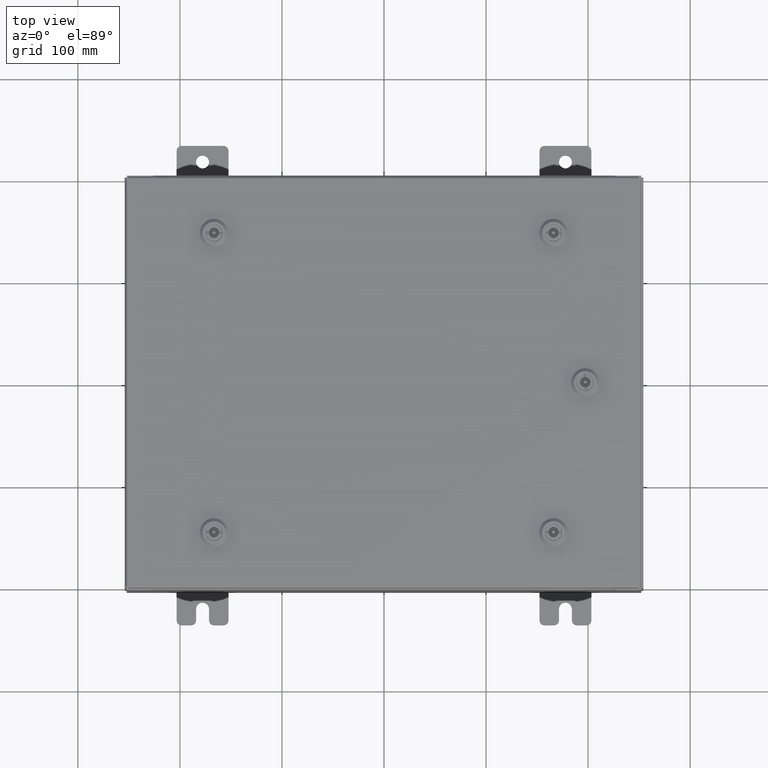
[diagram: clean part render]
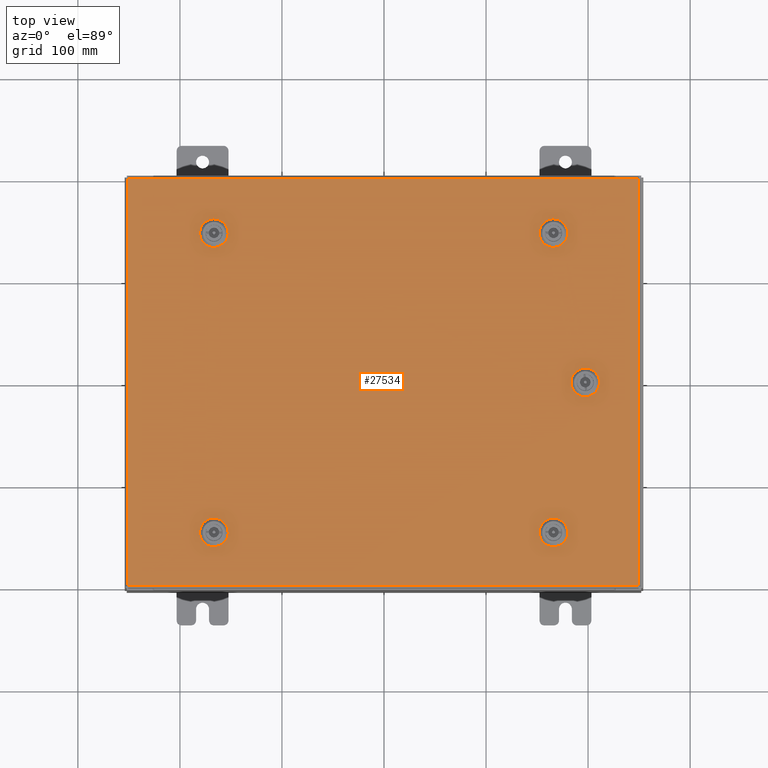
[diagram: same view with one face highlighted and labeled with its STEP entity id]
A machine part, top view. The second image highlights one B-rep face of the part: STEP entity #27534.
In plain terms, the highlighted planar face has unit normal (0, 0, -1).
Its self-contained STEP definition (entity closure, byte-faithful):
#348 = CARTESIAN_POINT ( 'NONE',  ( -6.363047624732097100, 5.392799999999997600, 0.0000000000000000000 ) ) ;
#856 = ORIENTED_EDGE ( 'NONE', *, *, #4443, .F. ) ;
#1285 = CARTESIAN_POINT ( 'NONE',  ( -9.849799999999996600, 7.849800000000001000, -2.048885995248197400E-016 ) ) ;
#1332 = CARTESIAN_POINT ( 'NONE',  ( -6.562499999999982200, 5.787799999999993600, 0.0000000000000000000 ) ) ;
#1644 = EDGE_CURVE ( 'NONE', #57119, #56373, #54412, .T. ) ;
#1732 = CARTESIAN_POINT ( 'NONE',  ( 6.363047624732090800, -6.182799999999985200, -2.741128742953046100E-014 ) ) ;
#2143 = VERTEX_POINT ( 'NONE', #59472 ) ;
#2266 = CARTESIAN_POINT ( 'NONE',  ( 6.562499999999982200, -5.787799999999993600, -2.326024867937287700E-014 ) ) ;
#2727 = LINE ( 'NONE', #4437, #55936 ) ;
#2816 = EDGE_CURVE ( 'NONE', #6146, #8316, #22693, .T. ) ;
#3255 = VERTEX_POINT ( 'NONE', #52387 ) ;
#3275 = CARTESIAN_POINT ( 'NONE',  ( -6.562499999999982200, -5.787799999999995400, -4.963978678686834100E-014 ) ) ;
#3628 = EDGE_CURVE ( 'NONE', #47539, #48164, #21097, .T. ) ;
#3692 = CARTESIAN_POINT ( 'NONE',  ( -6.363047624732097100, -5.392799999999999400, -4.688151652918229300E-014 ) ) ;
#3789 = LINE ( 'NONE', #8901, #29908 ) ;
#3847 = DIRECTION ( 'NONE',  ( 0.0000000000000000000, 0.0000000000000000000, 1.000000000000000000 ) ) ;
#3917 = CARTESIAN_POINT ( 'NONE',  ( 7.392800000000016200, 0.1994523752679053800, 0.0000000000000000000 ) ) ;
#4165 = VECTOR ( 'NONE', #53612, 39.37007874015748100 ) ;
#4298 = CARTESIAN_POINT ( 'NONE',  ( 7.392800000000016200, 0.1994523752679053200, 0.0000000000000000000 ) ) ;
#4334 = VERTEX_POINT ( 'NONE', #58312 ) ;
#4437 = CARTESIAN_POINT ( 'NONE',  ( 8.182800000000003800, 0.1994523752679009100, 0.0000000000000000000 ) ) ;
#4443 = EDGE_CURVE ( 'NONE', #40968, #11866, #15666, .T. ) ;
#4897 = DIRECTION ( 'NONE',  ( -0.0000000000000000000, -6.982962677686266700E-015, 1.000000000000000000 ) ) ;
#4906 = EDGE_CURVE ( 'NONE', #42627, #11443, #36209, .T. ) ;
#5082 = VERTEX_POINT ( 'NONE', #21747 ) ;
#5396 = CARTESIAN_POINT ( 'NONE',  ( -6.363047624732090800, 6.182799999999985200, 0.0000000000000000000 ) ) ;
#5626 = AXIS2_PLACEMENT_3D ( 'NONE', #53522, #24709, #58388 ) ;
#5725 = AXIS2_PLACEMENT_3D ( 'NONE', #34254, #4897, #39074 ) ;
#6146 = VERTEX_POINT ( 'NONE', #23786 ) ;
#6350 = DIRECTION ( 'NONE',  ( 1.000000000000000000, 0.0000000000000000000, 0.0000000000000000000 ) ) ;
#6488 = ORIENTED_EDGE ( 'NONE', *, *, #50657, .F. ) ;
#6748 = EDGE_CURVE ( 'NONE', #58256, #47539, #11669, .T. ) ;
#7010 = ORIENTED_EDGE ( 'NONE', *, *, #16167, .F. ) ;
#7127 = LINE ( 'NONE', #59695, #42965 ) ;
#7249 = DIRECTION ( 'NONE',  ( 1.000000000000000000, 0.0000000000000000000, 6.982962677686261200E-015 ) ) ;
#7351 = DIRECTION ( 'NONE',  ( -1.000000000000000000, 2.739348669069610000E-015, 1.946424297521510000E-029 ) ) ;
#7633 = DIRECTION ( 'NONE',  ( 6.982962677686266700E-015, -0.0000000000000000000, 1.000000000000000000 ) ) ;
#7824 = CARTESIAN_POINT ( 'NONE',  ( 6.562499999999982200, 5.787799999999995400, -2.637953810749545800E-014 ) ) ;
#8012 = DIRECTION ( 'NONE',  ( -6.982962677686266700E-015, -6.982962677686266700E-015, 1.000000000000000000 ) ) ;
#8267 = FACE_BOUND ( 'NONE', #49751, .T. ) ;
#8270 = DIRECTION ( 'NONE',  ( 0.0000000000000000000, 1.000000000000000000, 6.982962677686269100E-015 ) ) ;
#8316 = VERTEX_POINT ( 'NONE', #47355 ) ;
#8773 = EDGE_LOOP ( 'NONE', ( #31400, #23555, #35039, #20751 ) ) ;
#8901 = CARTESIAN_POINT ( 'NONE',  ( 6.363047624732090800, -6.182799999999985200, -2.741128742953046100E-014 ) ) ;
#9084 = EDGE_CURVE ( 'NONE', #21760, #57119, #7127, .T. ) ;
#9629 = ORIENTED_EDGE ( 'NONE', *, *, #22075, .F. ) ;
#9861 = VERTEX_POINT ( 'NONE', #42300 ) ;
#10195 = CARTESIAN_POINT ( 'NONE',  ( 9.849800000000001900, -7.849799999999999200, -2.048885995248197400E-016 ) ) ;
#10448 = ORIENTED_EDGE ( 'NONE', *, *, #61445, .F. ) ;
#11164 = VECTOR ( 'NONE', #52147, 39.37007874015748100 ) ;
#11321 = DIRECTION ( 'NONE',  ( -1.000000000000000000, 0.0000000000000000000, 6.982962677686261200E-015 ) ) ;
#11443 = VERTEX_POINT ( 'NONE', #35872 ) ;
#11520 = ORIENTED_EDGE ( 'NONE', *, *, #57882, .F. ) ;
#11532 = CIRCLE ( 'NONE', #13554, 0.4424999999999972800 ) ;
#11669 = LINE ( 'NONE', #3917, #37606 ) ;
#11758 = DIRECTION ( 'NONE',  ( 0.0000000000000000000, 0.0000000000000000000, 1.000000000000000000 ) ) ;
#11866 = VERTEX_POINT ( 'NONE', #12101 ) ;
#11993 = ORIENTED_EDGE ( 'NONE', *, *, #4906, .F. ) ;
#12101 = CARTESIAN_POINT ( 'NONE',  ( -6.119999999999985000, -5.787799999999995400, -4.963978678686834100E-014 ) ) ;
#12209 = ORIENTED_EDGE ( 'NONE', *, *, #3628, .F. ) ;
#12291 = CARTESIAN_POINT ( 'NONE',  ( 6.562499999999982200, 5.787799999999995400, -2.637953810749545800E-014 ) ) ;
#12499 = ORIENTED_EDGE ( 'NONE', *, *, #23521, .F. ) ;
#12501 = AXIS2_PLACEMENT_3D ( 'NONE', #28643, #62228, #33492 ) ;
#12639 = VERTEX_POINT ( 'NONE', #45659 ) ;
#12779 = CARTESIAN_POINT ( 'NONE',  ( -6.562499999999982200, 5.787799999999993600, 0.0000000000000000000 ) ) ;
#13187 = CARTESIAN_POINT ( 'NONE',  ( -6.363047624732090800, -6.182799999999987000, -5.239805704455435800E-014 ) ) ;
#13206 = AXIS2_PLACEMENT_3D ( 'NONE', #12779, #11758, #15734 ) ;
#13447 = CARTESIAN_POINT ( 'NONE',  ( 6.363047624732097100, -5.392799999999997600, -2.189474691415834200E-014 ) ) ;
#13554 = AXIS2_PLACEMENT_3D ( 'NONE', #3275, #37518, #8270 ) ;
#14785 = EDGE_LOOP ( 'NONE', ( #45666, #10448, #6488, #12499, #856 ) ) ;
#14964 = VECTOR ( 'NONE', #31048, 39.37007874015748100 ) ;
#14990 = CIRCLE ( 'NONE', #12501, 0.4424999999999983400 ) ;
#15186 = VERTEX_POINT ( 'NONE', #1732 ) ;
#15666 = CIRCLE ( 'NONE', #51242, 0.4424999999999972800 ) ;
#15734 = DIRECTION ( 'NONE',  ( 1.000000000000000000, 0.0000000000000000000, 0.0000000000000000000 ) ) ;
#16167 = EDGE_CURVE ( 'NONE', #3255, #5082, #50022, .T. ) ;
#16198 = AXIS2_PLACEMENT_3D ( 'NONE', #60338, #20979, #31645 ) ;
#16288 = CARTESIAN_POINT ( 'NONE',  ( -9.849799999999996600, -7.849799999999999200, -2.219626494852214000E-016 ) ) ;
#16548 = LINE ( 'NONE', #16288, #14964 ) ;
#17241 = DIRECTION ( 'NONE',  ( -1.000000000000000000, 0.0000000000000000000, 6.982962677686269100E-015 ) ) ;
#18228 = LINE ( 'NONE', #348, #61225 ) ;
#18530 = VERTEX_POINT ( 'NONE', #27648 ) ;
#18885 = EDGE_CURVE ( 'NONE', #9861, #33569, #30352, .T. ) ;
#18964 = DIRECTION ( 'NONE',  ( -1.000000000000000000, 1.369674334534793800E-014, 0.0000000000000000000 ) ) ;
#19049 = CARTESIAN_POINT ( 'NONE',  ( -9.849799999999996600, 7.849800000000001000, -2.048885995248197400E-016 ) ) ;
#19310 = EDGE_CURVE ( 'NONE', #11443, #12639, #14990, .T. ) ;
#19759 = CIRCLE ( 'NONE', #5626, 0.4424999999999972800 ) ;
#19801 = EDGE_LOOP ( 'NONE', ( #24010, #51541, #9629, #32609, #35127 ) ) ;
#19807 = DIRECTION ( 'NONE',  ( 1.000000000000000000, 2.739348669069610000E-015, -0.0000000000000000000 ) ) ;
#20599 = VERTEX_POINT ( 'NONE', #3692 ) ;
#20669 = EDGE_CURVE ( 'NONE', #2143, #36961, #55599, .T. ) ;
#20751 = ORIENTED_EDGE ( 'NONE', *, *, #1644, .T. ) ;
#20979 = DIRECTION ( 'NONE',  ( 0.0000000000000000000, 0.0000000000000000000, -1.000000000000000000 ) ) ;
#21097 = CIRCLE ( 'NONE', #52940, 0.4424999999999983400 ) ;
#21345 = FACE_BOUND ( 'NONE', #34354, .T. ) ;
#21747 = CARTESIAN_POINT ( 'NONE',  ( 6.761952375267867400, -5.392799999999995800, 0.0000000000000000000 ) ) ;
#21760 = VERTEX_POINT ( 'NONE', #36198 ) ;
#21993 = DIRECTION ( 'NONE',  ( 0.0000000000000000000, -1.000000000000000000, 0.0000000000000000000 ) ) ;
#22075 = EDGE_CURVE ( 'NONE', #33569, #6146, #57800, .T. ) ;
#22508 = VECTOR ( 'NONE', #36787, 39.37007874015748100 ) ;
#22693 = CIRCLE ( 'NONE', #13206, 0.4424999999999983400 ) ;
#23521 = EDGE_CURVE ( 'NONE', #11866, #20599, #11532, .T. ) ;
#23555 = ORIENTED_EDGE ( 'NONE', *, *, #59956, .T. ) ;
#23654 = EDGE_CURVE ( 'NONE', #15186, #51661, #3789, .T. ) ;
#23674 = VECTOR ( 'NONE', #37106, 39.37007874015748100 ) ;
#23786 = CARTESIAN_POINT ( 'NONE',  ( -6.761952375267863900, 6.182799999999990500, 0.0000000000000000000 ) ) ;
#24010 = ORIENTED_EDGE ( 'NONE', *, *, #57205, .F. ) ;
#24024 = LINE ( 'NONE', #41404, #22508 ) ;
#24205 = LINE ( 'NONE', #13447, #11164 ) ;
#24206 = DIRECTION ( 'NONE',  ( -8.218046007208852600E-015, 1.000000000000000000, -0.0000000000000000000 ) ) ;
#24552 = VERTEX_POINT ( 'NONE', #54461 ) ;
#24637 = CARTESIAN_POINT ( 'NONE',  ( 7.787800000000009600, 1.529834876451990400E-014, 0.0000000000000000000 ) ) ;
#24709 = DIRECTION ( 'NONE',  ( -6.982962677686266700E-015, -6.982962677686266700E-015, 1.000000000000000000 ) ) ;
#24820 = CARTESIAN_POINT ( 'NONE',  ( 9.849800000000001900, -7.849799999999999200, -2.048885995248197400E-016 ) ) ;
#25556 = EDGE_CURVE ( 'NONE', #18530, #40968, #26763, .T. ) ;
#25826 = EDGE_LOOP ( 'NONE', ( #11520, #12209, #54034, #33963 ) ) ;
#25871 = CIRCLE ( 'NONE', #43624, 0.4424999999999972800 ) ;
#26763 = LINE ( 'NONE', #41944, #23674 ) ;
#27315 = CIRCLE ( 'NONE', #47876, 0.4424999999999983400 ) ;
#27454 = ORIENTED_EDGE ( 'NONE', *, *, #20669, .F. ) ;
#27534 = ADVANCED_FACE ( 'NONE', ( #35797, #21345, #58299, #8267, #45552, #32790 ), #55524, .F. ) ;
#27648 = CARTESIAN_POINT ( 'NONE',  ( -6.761952375267863900, -6.182799999999993200, 0.0000000000000000000 ) ) ;
#28643 = CARTESIAN_POINT ( 'NONE',  ( 6.562499999999982200, 5.787799999999995400, -2.637953810749545800E-014 ) ) ;
#29533 = VERTEX_POINT ( 'NONE', #24820 ) ;
#29560 = DIRECTION ( 'NONE',  ( 1.000000000000000000, 0.0000000000000000000, 0.0000000000000000000 ) ) ;
#29693 = LINE ( 'NONE', #39310, #53692 ) ;
#29908 = VECTOR ( 'NONE', #42970, 39.37007874015748100 ) ;
#30084 = EDGE_CURVE ( 'NONE', #51661, #3255, #27315, .T. ) ;
#30274 = LINE ( 'NONE', #10195, #4165 ) ;
#30352 = CIRCLE ( 'NONE', #53856, 0.4424999999999972800 ) ;
#31048 = DIRECTION ( 'NONE',  ( 1.000000000000000000, -0.0000000000000000000, -0.0000000000000000000 ) ) ;
#31400 = ORIENTED_EDGE ( 'NONE', *, *, #35006, .T. ) ;
#31459 = AXIS2_PLACEMENT_3D ( 'NONE', #12291, #46239, #17241 ) ;
#31645 = DIRECTION ( 'NONE',  ( -1.000000000000000000, 0.0000000000000000000, -0.0000000000000000000 ) ) ;
#32609 = ORIENTED_EDGE ( 'NONE', *, *, #18885, .F. ) ;
#32790 = FACE_OUTER_BOUND ( 'NONE', #8773, .T. ) ;
#32954 = DIRECTION ( 'NONE',  ( 1.000000000000000000, 0.0000000000000000000, 0.0000000000000000000 ) ) ;
#33200 = CARTESIAN_POINT ( 'NONE',  ( -6.562499999999982200, 5.787799999999993600, 0.0000000000000000000 ) ) ;
#33492 = DIRECTION ( 'NONE',  ( -1.000000000000000000, 0.0000000000000000000, 6.982962677686261200E-015 ) ) ;
#33569 = VERTEX_POINT ( 'NONE', #5396 ) ;
#33800 = VECTOR ( 'NONE', #7351, 39.37007874015748100 ) ;
#33963 = ORIENTED_EDGE ( 'NONE', *, *, #57960, .F. ) ;
#34196 = ORIENTED_EDGE ( 'NONE', *, *, #48656, .F. ) ;
#34254 = CARTESIAN_POINT ( 'NONE',  ( -6.562499999999982200, -5.787799999999995400, -4.963978678686834100E-014 ) ) ;
#34354 = EDGE_LOOP ( 'NONE', ( #34529, #7010, #60462, #41149, #48407 ) ) ;
#34529 = ORIENTED_EDGE ( 'NONE', *, *, #34619, .F. ) ;
#34619 = EDGE_CURVE ( 'NONE', #5082, #53585, #24205, .T. ) ;
#35006 = EDGE_CURVE ( 'NONE', #56373, #29533, #16548, .T. ) ;
#35039 = ORIENTED_EDGE ( 'NONE', *, *, #9084, .T. ) ;
#35127 = ORIENTED_EDGE ( 'NONE', *, *, #61249, .F. ) ;
#35238 = DIRECTION ( 'NONE',  ( 0.0000000000000000000, 0.0000000000000000000, 1.000000000000000000 ) ) ;
#35624 = DIRECTION ( 'NONE',  ( 0.0000000000000000000, 0.0000000000000000000, 1.000000000000000000 ) ) ;
#35797 = FACE_BOUND ( 'NONE', #25826, .T. ) ;
#35872 = CARTESIAN_POINT ( 'NONE',  ( 7.004999999999980400, 5.787799999999995400, -2.946949909237162500E-014 ) ) ;
#36198 = CARTESIAN_POINT ( 'NONE',  ( 9.849800000000001900, 7.849800000000001000, -7.683322482180740400E-016 ) ) ;
#36209 = CIRCLE ( 'NONE', #39262, 0.4424999999999983400 ) ;
#36426 = ORIENTED_EDGE ( 'NONE', *, *, #46006, .F. ) ;
#36545 = DIRECTION ( 'NONE',  ( -6.982962677686266700E-015, -6.982962677686266700E-015, 1.000000000000000000 ) ) ;
#36787 = DIRECTION ( 'NONE',  ( 1.000000000000000000, -2.739348669069610000E-015, -6.982962677686248600E-015 ) ) ;
#36961 = VERTEX_POINT ( 'NONE', #60792 ) ;
#37106 = DIRECTION ( 'NONE',  ( 1.000000000000000000, 1.369674334534793800E-014, 9.732121487607470400E-029 ) ) ;
#37268 = CARTESIAN_POINT ( 'NONE',  ( 6.562499999999982200, -5.787799999999993600, -2.326024867937287700E-014 ) ) ;
#37518 = DIRECTION ( 'NONE',  ( -0.0000000000000000000, -6.982962677686266700E-015, 1.000000000000000000 ) ) ;
#37606 = VECTOR ( 'NONE', #50440, 39.37007874015748100 ) ;
#37882 = CARTESIAN_POINT ( 'NONE',  ( 6.363047624732097100, -5.392799999999997600, -2.189474691415834200E-014 ) ) ;
#38054 = DIRECTION ( 'NONE',  ( 1.000000000000000000, 0.0000000000000000000, 0.0000000000000000000 ) ) ;
#39074 = DIRECTION ( 'NONE',  ( 0.0000000000000000000, 1.000000000000000000, 6.982962677686270700E-015 ) ) ;
#39262 = AXIS2_PLACEMENT_3D ( 'NONE', #7824, #7633, #11321 ) ;
#39310 = CARTESIAN_POINT ( 'NONE',  ( 6.363047624732090800, 6.182799999999987000, -2.498676961502389700E-014 ) ) ;
#39748 = AXIS2_PLACEMENT_3D ( 'NONE', #2266, #36545, #7249 ) ;
#40638 = CARTESIAN_POINT ( 'NONE',  ( 7.392800000000012700, -0.1994523752678671000, 0.0000000000000000000 ) ) ;
#40968 = VERTEX_POINT ( 'NONE', #13187 ) ;
#41149 = ORIENTED_EDGE ( 'NONE', *, *, #23654, .F. ) ;
#41404 = CARTESIAN_POINT ( 'NONE',  ( 6.363047624732097100, 5.392799999999999400, -2.498676961502394800E-014 ) ) ;
#41689 = VECTOR ( 'NONE', #21993, 39.37007874015748100 ) ;
#41944 = CARTESIAN_POINT ( 'NONE',  ( -6.363047624732090800, -6.182799999999987000, -5.239805704455435800E-014 ) ) ;
#42102 = DIRECTION ( 'NONE',  ( 1.000000000000000000, 0.0000000000000000000, 6.982962677686261200E-015 ) ) ;
#42201 = CARTESIAN_POINT ( 'NONE',  ( 6.761952375267863900, -6.182799999999990500, -2.462575044458744400E-014 ) ) ;
#42300 = CARTESIAN_POINT ( 'NONE',  ( -6.119999999999985000, 5.787799999999993600, 0.0000000000000000000 ) ) ;
#42627 = VERTEX_POINT ( 'NONE', #53443 ) ;
#42965 = VECTOR ( 'NONE', #57856, 39.37007874015748100 ) ;
#42970 = DIRECTION ( 'NONE',  ( 1.000000000000000000, -1.369674334534793800E-014, 6.982962677686171300E-015 ) ) ;
#43624 = AXIS2_PLACEMENT_3D ( 'NONE', #24637, #58314, #29560 ) ;
#43870 = CARTESIAN_POINT ( 'NONE',  ( -9.849799999999996600, -7.849799999999999200, -2.219626494852214000E-016 ) ) ;
#44267 = CARTESIAN_POINT ( 'NONE',  ( -6.562499999999982200, -5.787799999999995400, -4.963978678686834100E-014 ) ) ;
#44511 = CIRCLE ( 'NONE', #46087, 0.4424999999999972800 ) ;
#44682 = DIRECTION ( 'NONE',  ( -0.0000000000000000000, -6.982962677686266700E-015, 1.000000000000000000 ) ) ;
#45043 = VECTOR ( 'NONE', #18964, 39.37007874015748100 ) ;
#45080 = DIRECTION ( 'NONE',  ( 0.0000000000000000000, 1.000000000000000000, 6.982962677686269100E-015 ) ) ;
#45552 = FACE_BOUND ( 'NONE', #19801, .T. ) ;
#45659 = CARTESIAN_POINT ( 'NONE',  ( 6.761952375267863900, 6.182799999999993200, 0.0000000000000000000 ) ) ;
#45666 = ORIENTED_EDGE ( 'NONE', *, *, #25556, .F. ) ;
#46006 = EDGE_CURVE ( 'NONE', #12639, #2143, #29693, .T. ) ;
#46087 = AXIS2_PLACEMENT_3D ( 'NONE', #33200, #3847, #38054 ) ;
#46239 = DIRECTION ( 'NONE',  ( 6.982962677686266700E-015, -0.0000000000000000000, 1.000000000000000000 ) ) ;
#46526 = LINE ( 'NONE', #55666, #33800 ) ;
#46947 = CARTESIAN_POINT ( 'NONE',  ( -6.363047624732097100, 5.392799999999997600, 0.0000000000000000000 ) ) ;
#47355 = CARTESIAN_POINT ( 'NONE',  ( -6.761952375267867400, 5.392799999999995800, 0.0000000000000000000 ) ) ;
#47539 = VERTEX_POINT ( 'NONE', #40638 ) ;
#47876 = AXIS2_PLACEMENT_3D ( 'NONE', #37268, #8012, #42102 ) ;
#48164 = VERTEX_POINT ( 'NONE', #48528 ) ;
#48407 = ORIENTED_EDGE ( 'NONE', *, *, #57166, .F. ) ;
#48528 = CARTESIAN_POINT ( 'NONE',  ( 8.182800000000009200, -0.1994523752678676000, 0.0000000000000000000 ) ) ;
#48656 = EDGE_CURVE ( 'NONE', #36961, #42627, #24024, .T. ) ;
#49751 = EDGE_LOOP ( 'NONE', ( #36426, #61881, #11993, #34196, #27454 ) ) ;
#50022 = CIRCLE ( 'NONE', #39748, 0.4424999999999983400 ) ;
#50440 = DIRECTION ( 'NONE',  ( -8.218046007208770500E-015, -1.000000000000000000, 0.0000000000000000000 ) ) ;
#50657 = EDGE_CURVE ( 'NONE', #20599, #4334, #46526, .T. ) ;
#51242 = AXIS2_PLACEMENT_3D ( 'NONE', #44267, #44682, #45080 ) ;
#51541 = ORIENTED_EDGE ( 'NONE', *, *, #2816, .F. ) ;
#51661 = VERTEX_POINT ( 'NONE', #42201 ) ;
#52147 = DIRECTION ( 'NONE',  ( -1.000000000000000000, -2.739348669069610000E-015, -6.982962677686276200E-015 ) ) ;
#52387 = CARTESIAN_POINT ( 'NONE',  ( 7.004999999999980400, -5.787799999999993600, -2.017028769449671600E-014 ) ) ;
#52704 = CIRCLE ( 'NONE', #5725, 0.4424999999999983400 ) ;
#52940 = AXIS2_PLACEMENT_3D ( 'NONE', #55326, #35238, #32954 ) ;
#53443 = CARTESIAN_POINT ( 'NONE',  ( 6.761952375267867400, 5.392799999999998500, -2.777230659996697100E-014 ) ) ;
#53522 = CARTESIAN_POINT ( 'NONE',  ( 6.562499999999982200, -5.787799999999993600, -2.326024867937287700E-014 ) ) ;
#53585 = VERTEX_POINT ( 'NONE', #37882 ) ;
#53612 = DIRECTION ( 'NONE',  ( 0.0000000000000000000, 1.000000000000000000, 0.0000000000000000000 ) ) ;
#53692 = VECTOR ( 'NONE', #58591, 39.37007874015748100 ) ;
#53856 = AXIS2_PLACEMENT_3D ( 'NONE', #1332, #35624, #6350 ) ;
#54034 = ORIENTED_EDGE ( 'NONE', *, *, #6748, .F. ) ;
#54412 = LINE ( 'NONE', #1285, #41689 ) ;
#54461 = CARTESIAN_POINT ( 'NONE',  ( 8.182800000000003800, 0.1994523752679009100, 0.0000000000000000000 ) ) ;
#55326 = CARTESIAN_POINT ( 'NONE',  ( 7.787800000000009600, 1.529834876451990400E-014, 0.0000000000000000000 ) ) ;
#55524 = PLANE ( 'NONE',  #16198 ) ;
#55599 = CIRCLE ( 'NONE', #31459, 0.4424999999999972800 ) ;
#55666 = CARTESIAN_POINT ( 'NONE',  ( -6.363047624732097100, -5.392799999999999400, -4.688151652918229300E-014 ) ) ;
#55936 = VECTOR ( 'NONE', #24206, 39.37007874015748100 ) ;
#56373 = VERTEX_POINT ( 'NONE', #43870 ) ;
#57119 = VERTEX_POINT ( 'NONE', #19049 ) ;
#57166 = EDGE_CURVE ( 'NONE', #53585, #15186, #19759, .T. ) ;
#57205 = EDGE_CURVE ( 'NONE', #8316, #59592, #18228, .T. ) ;
#57800 = LINE ( 'NONE', #62168, #45043 ) ;
#57856 = DIRECTION ( 'NONE',  ( -1.000000000000000000, -0.0000000000000000000, -0.0000000000000000000 ) ) ;
#57882 = EDGE_CURVE ( 'NONE', #48164, #24552, #2727, .T. ) ;
#57960 = EDGE_CURVE ( 'NONE', #24552, #58256, #25871, .T. ) ;
#58256 = VERTEX_POINT ( 'NONE', #4298 ) ;
#58299 = FACE_BOUND ( 'NONE', #14785, .T. ) ;
#58312 = CARTESIAN_POINT ( 'NONE',  ( -6.761952375267867400, -5.392799999999998500, -4.688151652918228700E-014 ) ) ;
#58314 = DIRECTION ( 'NONE',  ( 0.0000000000000000000, 0.0000000000000000000, 1.000000000000000000 ) ) ;
#58388 = DIRECTION ( 'NONE',  ( 1.000000000000000000, 0.0000000000000000000, 6.982962677686269100E-015 ) ) ;
#58591 = DIRECTION ( 'NONE',  ( -1.000000000000000000, -1.369674334534793800E-014, 6.982962677686269100E-015 ) ) ;
#59472 = CARTESIAN_POINT ( 'NONE',  ( 6.363047624732090800, 6.182799999999987000, -2.498676961502389700E-014 ) ) ;
#59592 = VERTEX_POINT ( 'NONE', #46947 ) ;
#59695 = CARTESIAN_POINT ( 'NONE',  ( 9.849800000000001900, 7.849800000000001000, -7.683322482180740400E-016 ) ) ;
#59956 = EDGE_CURVE ( 'NONE', #29533, #21760, #30274, .T. ) ;
#60338 = CARTESIAN_POINT ( 'NONE',  ( 0.0000000000000000000, 0.0000000000000000000, 0.0000000000000000000 ) ) ;
#60462 = ORIENTED_EDGE ( 'NONE', *, *, #30084, .F. ) ;
#60792 = CARTESIAN_POINT ( 'NONE',  ( 6.363047624732097100, 5.392799999999999400, -2.498676961502394800E-014 ) ) ;
#61225 = VECTOR ( 'NONE', #19807, 39.37007874015748100 ) ;
#61249 = EDGE_CURVE ( 'NONE', #59592, #9861, #44511, .T. ) ;
#61445 = EDGE_CURVE ( 'NONE', #4334, #18530, #52704, .T. ) ;
#61881 = ORIENTED_EDGE ( 'NONE', *, *, #19310, .F. ) ;
#62168 = CARTESIAN_POINT ( 'NONE',  ( -6.363047624732090800, 6.182799999999985200, 0.0000000000000000000 ) ) ;
#62228 = DIRECTION ( 'NONE',  ( 6.982962677686266700E-015, -0.0000000000000000000, 1.000000000000000000 ) ) ;